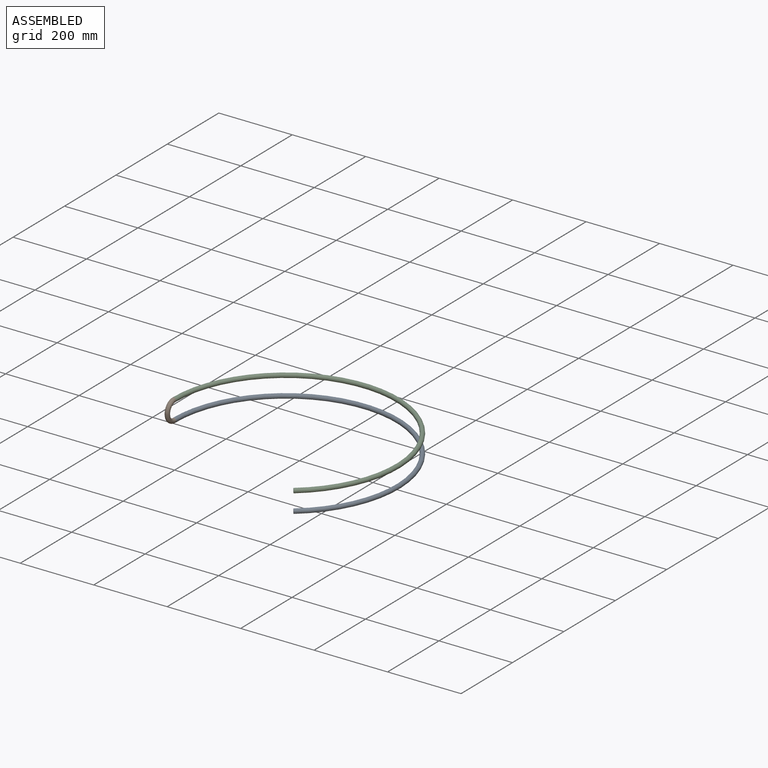
[diagram: assembled view]
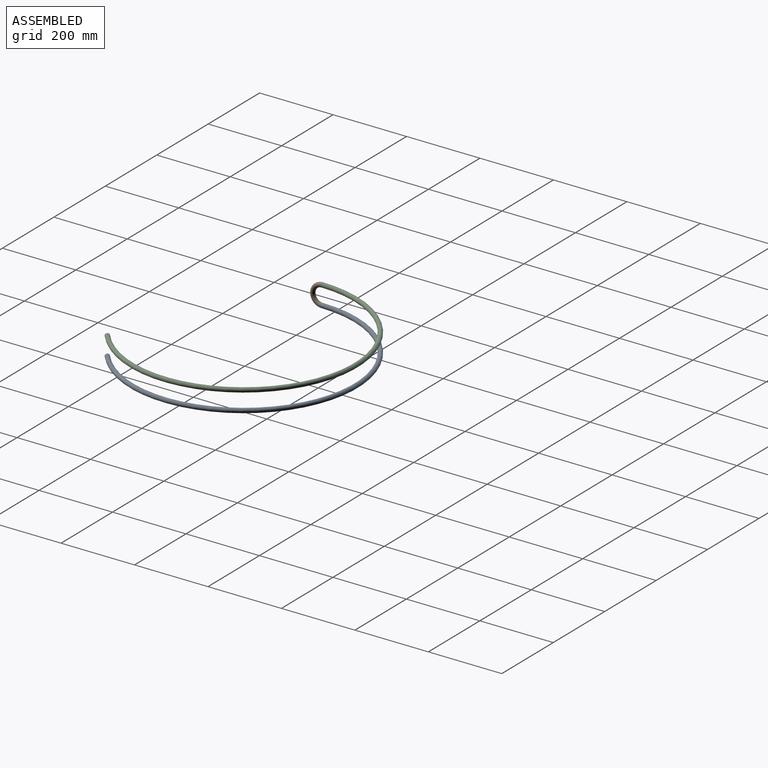
[diagram: assembled view, second angle]
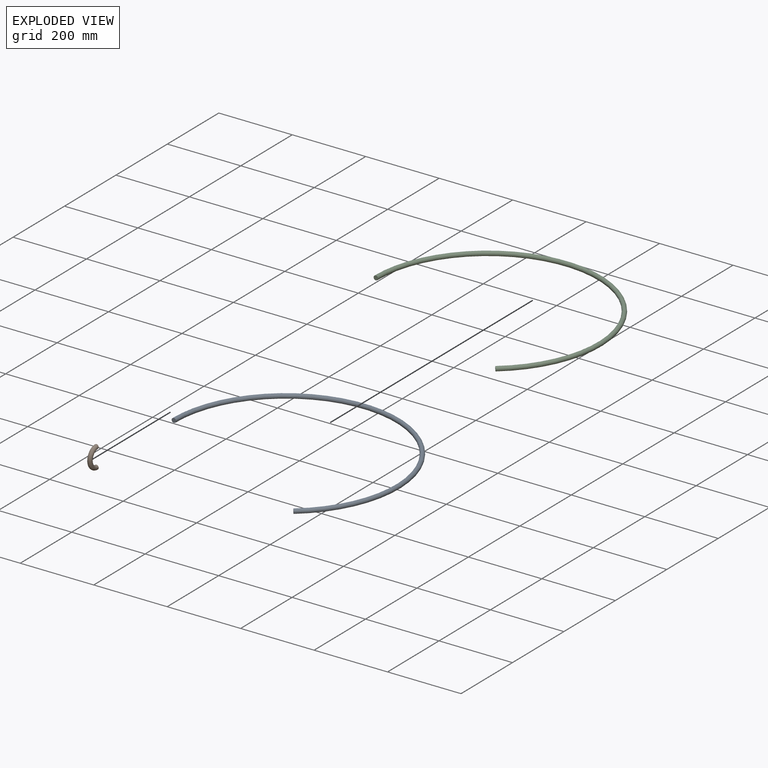
[diagram: exploded view]
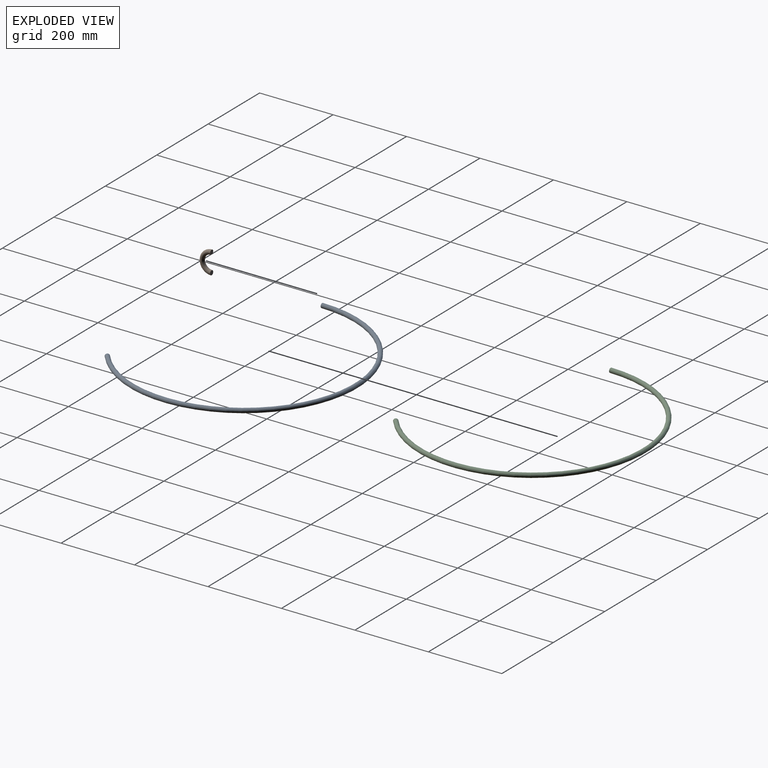
[diagram: exploded view, second angle]
ASSEMBLY  parts=3 mates=2
PART A: 3 faces, bbox 672.8x600.7x12.1 mm
  f0: plane 12.07x9.48mm, normal (-0.79,-0.62,0), area 114.3mm2, adj f2
  f1: plane 12.07x12.07mm, normal (0,-1,0), area 114.3mm2, adj f2
  f2: torus R=304.78mm, axis (0,0,1), area 46730.8mm2, adj f0,f1
PART B: 3 faces, bbox 34x67.9x12.1 mm
  f0: plane 12.07x12.07mm, normal (1,0,0), area 114.3mm2, adj f2
  f1: plane 12.07x12.07mm, normal (1,0,0), area 114.3mm2, adj f2
  f2: torus R=25.35mm, axis (0,0,1), area 3018.5mm2, adj f0,f1
PART C: 3 faces, bbox 672.9x600.8x12.1 mm
  f0: plane 12.07x9.48mm, normal (-0.79,-0.62,0), area 114.3mm2, adj f2
  f1: plane 12.07x12.07mm, normal (0,-1,0), area 114.3mm2, adj f2
  f2: torus R=304.79mm, axis (0,0,1), area 46733.4mm2, adj f0,f1
PLACE A rot(axis=(-1,0,0),0deg) t=(-23.65,-19.31,97.83)mm
PLACE B rot(axis=(-0.58,-0.58,0.58),120deg) t=(-328.43,-19.27,123.18)mm
PLACE C t=(-23.64,-19.3,97.72)mm
MATE ball B.f1 <-> C.f1  axis (0,1,0) through (-328.43,-19.27,148.53)mm
MATE ball A.f1 <-> B.f0  axis (0,-1,0) through (-328.43,-19.28,97.83)mm
